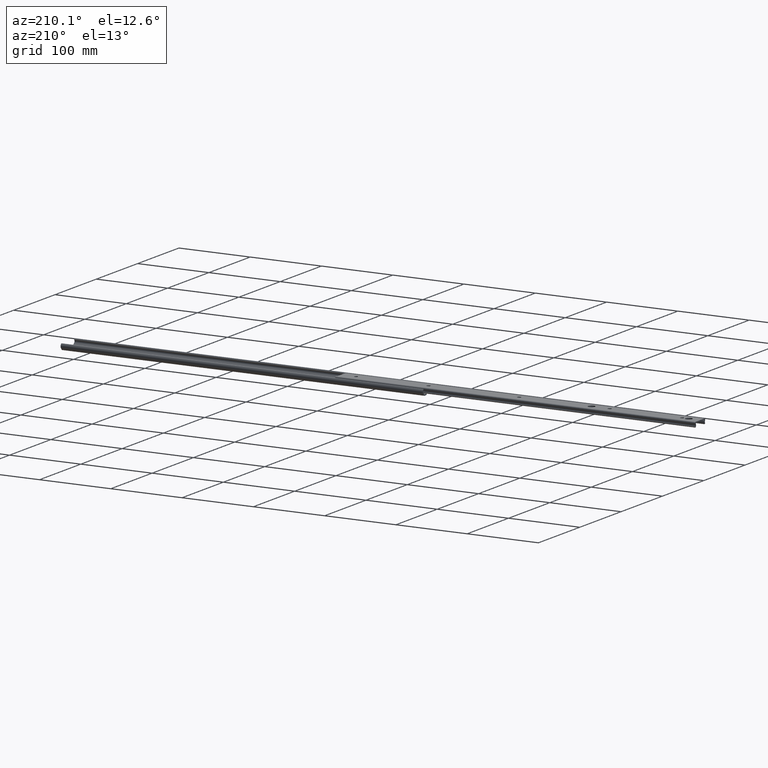
[diagram: clean part render]
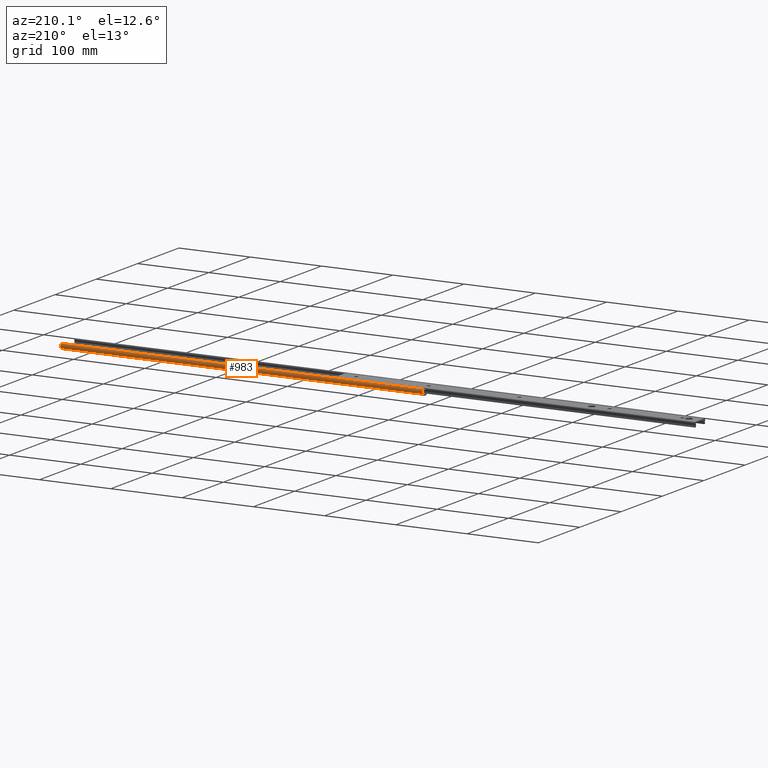
[diagram: same view with one face highlighted and labeled with its STEP entity id]
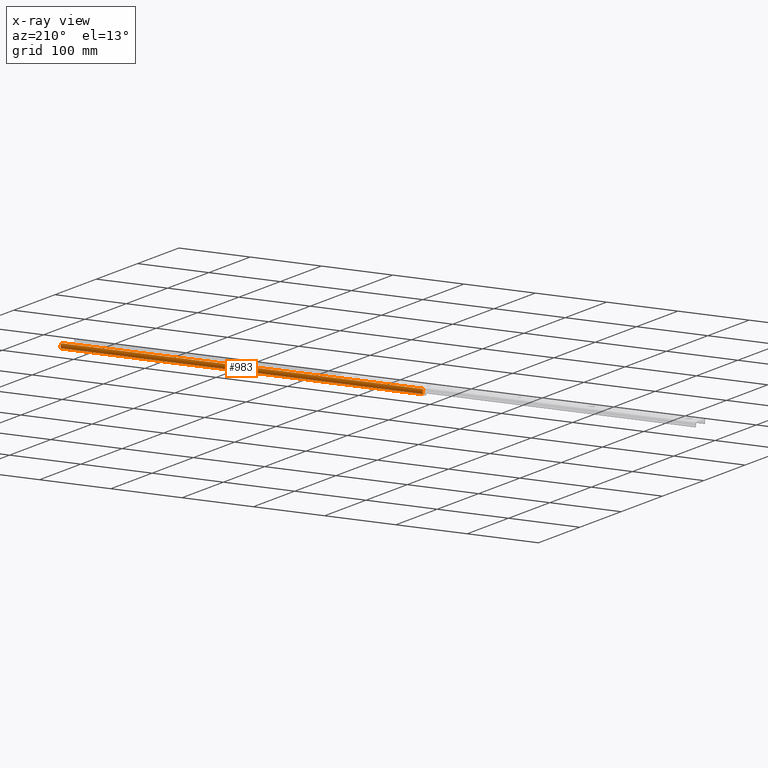
[diagram: x-ray of the same camera — body ghosted, the highlighted face saturated]
A machine part, auxiliary view. The second image highlights one B-rep face of the part: STEP entity #983.
The next image is the same camera in x-ray: the body ghosted, the highlighted face saturated — about 0% of this face is hidden behind the body in this view.
In plain terms, the highlighted cylindrical surface (edge-blend (fillet) strip) has radius 4.1 mm, axis along (-1, -0, -0).
Its self-contained STEP definition (entity closure, byte-faithful):
#42 = ORIENTED_EDGE ( 'NONE', *, *, #3840, .F. ) ;
#146 = AXIS2_PLACEMENT_3D ( 'NONE', #3414, #434, #3687 ) ;
#222 = CARTESIAN_POINT ( 'NONE',  ( 508.0000000000000000, 15.68541565040558400, 8.799999999999585000 ) ) ;
#251 = EDGE_CURVE ( 'NONE', #2421, #3128, #3256, .T. ) ;
#430 = ORIENTED_EDGE ( 'NONE', *, *, #858, .T. ) ;
#434 = DIRECTION ( 'NONE',  ( 1.000000000000000000, 0.0000000000000000000, 0.0000000000000000000 ) ) ;
#519 = CYLINDRICAL_SURFACE ( 'NONE', #2068, 4.099999999999988100 ) ;
#542 = EDGE_CURVE ( 'NONE', #3294, #1686, #1124, .T. ) ;
#620 = FACE_OUTER_BOUND ( 'NONE', #3860, .T. ) ;
#622 = DIRECTION ( 'NONE',  ( -1.000000000000000000, -0.0000000000000000000, -0.0000000000000000000 ) ) ;
#648 = CARTESIAN_POINT ( 'NONE',  ( 508.0000000000000000, 16.45999190110085700, 2.411757085089796200 ) ) ;
#718 = VECTOR ( 'NONE', #2668, 1000.000000000000000 ) ;
#858 = EDGE_CURVE ( 'NONE', #1686, #3128, #1518, .T. ) ;
#868 = AXIS2_PLACEMENT_3D ( 'NONE', #3695, #1770, #4028 ) ;
#983 = ADVANCED_FACE ( 'NONE', ( #620 ), #519, .T. ) ;
#1124 = LINE ( 'NONE', #2119, #2706 ) ;
#1388 = CARTESIAN_POINT ( 'NONE',  ( 508.0000000000000000, 13.54999999999967700, 5.299999999999384300 ) ) ;
#1508 = DIRECTION ( 'NONE',  ( -1.000000000000000000, -0.0000000000000000000, -0.0000000000000000000 ) ) ;
#1511 = CIRCLE ( 'NONE', #868, 4.099999999999988100 ) ;
#1518 = CIRCLE ( 'NONE', #146, 4.099999999999988100 ) ;
#1686 = VERTEX_POINT ( 'NONE', #3119 ) ;
#1770 = DIRECTION ( 'NONE',  ( 1.000000000000000000, 0.0000000000000000000, 0.0000000000000000000 ) ) ;
#2068 = AXIS2_PLACEMENT_3D ( 'NONE', #1388, #1508, #3700 ) ;
#2080 = CARTESIAN_POINT ( 'NONE',  ( 508.0000000000000000, 15.68541565040558400, 8.799999999999585000 ) ) ;
#2119 = CARTESIAN_POINT ( 'NONE',  ( 508.0000000000000000, 16.45999190110085700, 2.411757085089796200 ) ) ;
#2398 = CARTESIAN_POINT ( 'NONE',  ( 0.0000000000000000000, 15.68541565040558400, 8.799999999999585000 ) ) ;
#2421 = VERTEX_POINT ( 'NONE', #222 ) ;
#2668 = DIRECTION ( 'NONE',  ( -1.000000000000000000, -0.0000000000000000000, -0.0000000000000000000 ) ) ;
#2706 = VECTOR ( 'NONE', #622, 1000.000000000000000 ) ;
#2718 = ORIENTED_EDGE ( 'NONE', *, *, #542, .T. ) ;
#3119 = CARTESIAN_POINT ( 'NONE',  ( 0.0000000000000000000, 16.45999190110085700, 2.411757085089796200 ) ) ;
#3128 = VERTEX_POINT ( 'NONE', #2398 ) ;
#3256 = LINE ( 'NONE', #2080, #718 ) ;
#3294 = VERTEX_POINT ( 'NONE', #648 ) ;
#3414 = CARTESIAN_POINT ( 'NONE',  ( 0.0000000000000000000, 13.54999999999967700, 5.299999999999384300 ) ) ;
#3687 = DIRECTION ( 'NONE',  ( 0.0000000000000000000, 0.0000000000000000000, -1.000000000000000000 ) ) ;
#3695 = CARTESIAN_POINT ( 'NONE',  ( 508.0000000000000000, 13.54999999999967700, 5.299999999999384300 ) ) ;
#3700 = DIRECTION ( 'NONE',  ( 0.0000000000000000000, 0.0000000000000000000, 1.000000000000000000 ) ) ;
#3840 = EDGE_CURVE ( 'NONE', #3294, #2421, #1511, .T. ) ;
#3860 = EDGE_LOOP ( 'NONE', ( #430, #4101, #42, #2718 ) ) ;
#4028 = DIRECTION ( 'NONE',  ( 0.0000000000000000000, 0.0000000000000000000, -1.000000000000000000 ) ) ;
#4101 = ORIENTED_EDGE ( 'NONE', *, *, #251, .F. ) ;